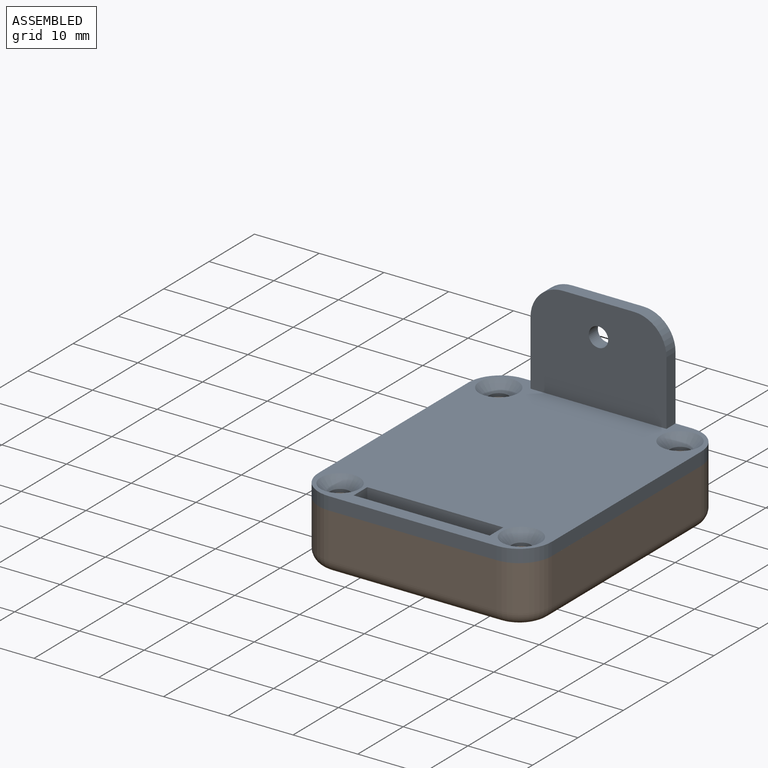
[diagram: assembled view]
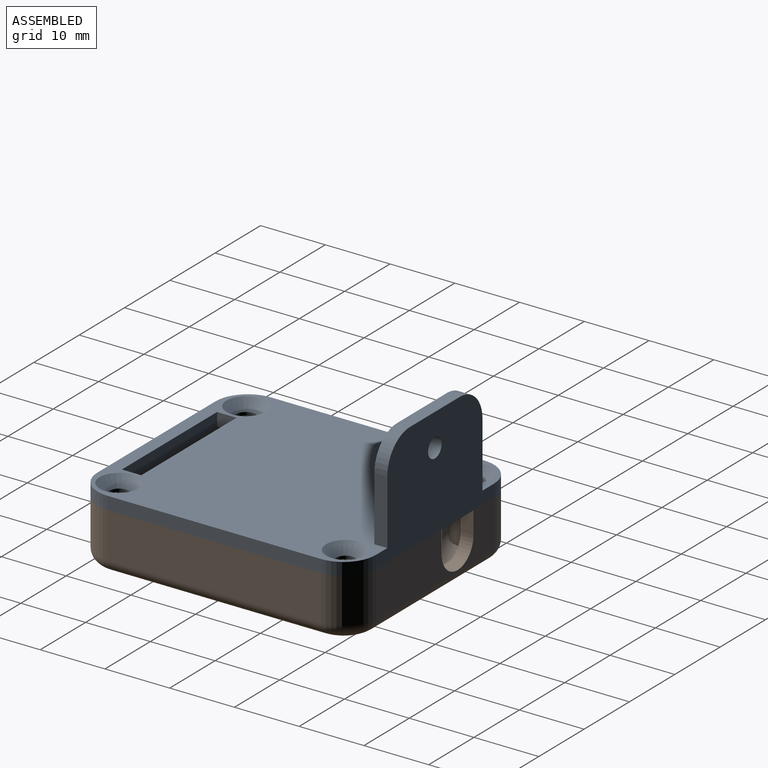
[diagram: assembled view, second angle]
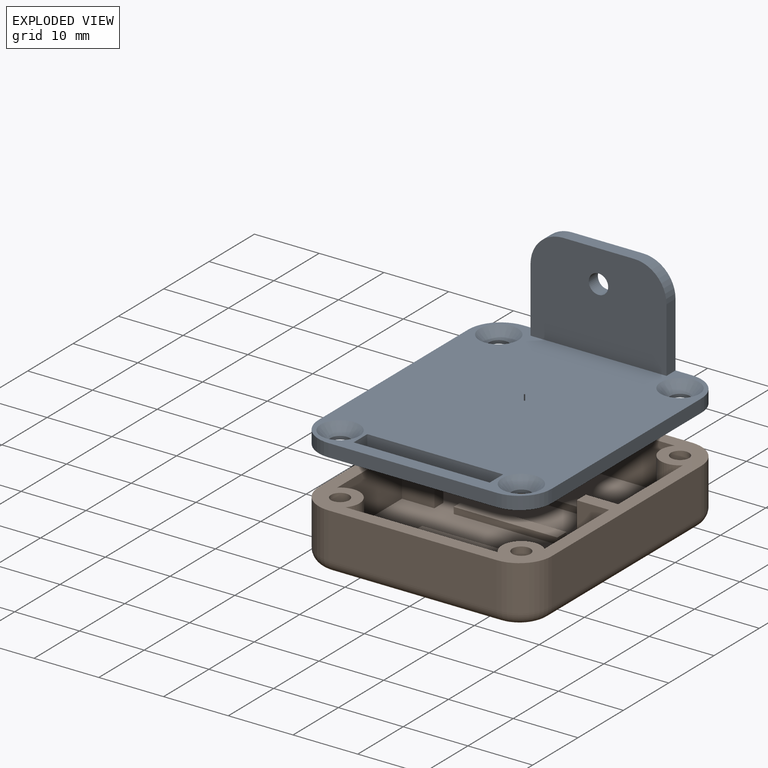
[diagram: exploded view]
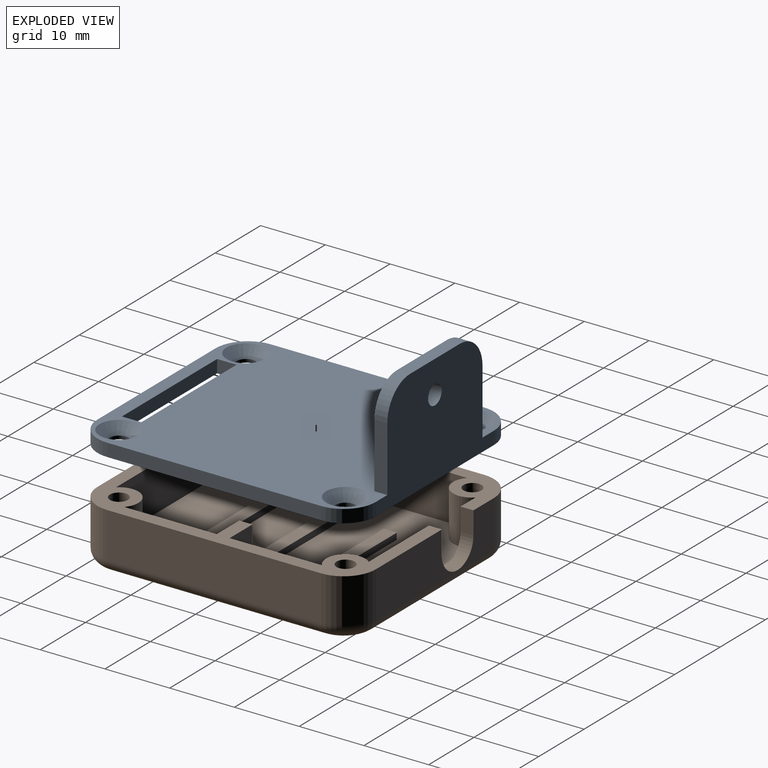
[diagram: exploded view, second angle]
ASSEMBLY  parts=2 mates=3
PART A: 29 faces, bbox 36x43x17 mm
  f0: plane 43x36mm, normal (0,0,1), area 1308.4mm2, adj f2,f3,f4,f5,f6,f7,f8,f9
  f1: plane 43x36mm, normal (0,0,-1), area 1435.3mm2, adj f2,f3,f4,f5,f6,f7,f8,f9
  f2: plane 33x2mm, normal (1,0,0), area 66mm2, adj f0,f1,f3,f9
  f3: cylinder r=5mm len=5mm, axis (0,0,-1), area 15.7mm2, adj f0,f1,f2,f4
  f4: plane 26x17mm, normal (0,1,0), area 349.2mm2, adj f0,f1,f3,f5,f22,f24,f25,f26
  f5: cylinder r=5mm len=5mm, axis (0,0,-1), area 15.7mm2, adj f0,f1,f4,f6
  f6: plane 33x2mm, normal (-1,0,0), area 66mm2, adj f0,f1,f5,f7
  f7: cylinder r=5mm len=5mm, axis (0,0,-1), area 15.7mm2, adj f0,f1,f6,f8
  f8: plane 26x2mm, normal (0,-1,0), area 52mm2, adj f0,f1,f7,f9
  f9: cylinder r=5mm len=5mm, axis (0,0,-1), area 15.7mm2, adj f0,f1,f2,f8
  f10: cylinder r=1.5mm len=3mm, axis (0,0,-1), area 4.7mm2, adj f1,f16
  f11: cylinder r=1.5mm len=3mm, axis (0,0,-1), area 4.7mm2, adj f1,f14
  f12: cylinder r=1.5mm len=3mm, axis (0,0,-1), area 4.7mm2, adj f1,f15
  f13: cylinder r=1.5mm len=3mm, axis (0,0,-1), area 4.7mm2, adj f1,f17
  f14: cone r=3mm half-angle=45deg, axis (0,0,1), area 30mm2, adj f0,f11
  f15: cone r=1.5mm half-angle=45deg, axis (0,0,1), area 30mm2, adj f0,f12
  f16: cone r=3mm half-angle=45deg, axis (0,0,1), area 30mm2, adj f0,f10
  f17: cone r=1.5mm half-angle=45deg, axis (0,0,1), area 30mm2, adj f0,f13
  f18: plane 21x2mm, normal (0,1,0), area 42mm2, adj f0,f1,f19,f20
  f19: plane 3x2mm, normal (1,0,0), area 6mm2, adj f0,f1,f18,f21
  f20: plane 3x2mm, normal (-1,0,0), area 6mm2, adj f0,f1,f18,f21
  f21: plane 21x2mm, normal (0,-1,0), area 42mm2, adj f0,f1,f19,f20
  f22: plane 10x2mm, normal (-1,0,0), area 20mm2, adj f0,f4,f23,f26
  f23: plane 21x15mm, normal (0,-1,0), area 297.2mm2, adj f0,f22,f24,f25,f26,f27,f28
  f24: plane 10x2mm, normal (1,0,0), area 20mm2, adj f0,f4,f23,f27
  f25: plane 11x2mm, normal (0,0,1), area 22mm2, adj f4,f23,f26,f27
  f26: cylinder r=5mm len=5mm, axis (0,1,0), area 15.7mm2, adj f4,f22,f23,f25
  f27: cylinder r=5mm len=5mm, axis (0,-1,0), area 15.7mm2, adj f4,f23,f24,f25
  f28: cylinder r=1.5mm len=3mm, axis (0,1,0), area 18.8mm2, adj f4,f23
PART B: 63 faces, bbox 36.8x43.8x9 mm
  f0: plane 18x7mm, normal (0,1,0), area 104.1mm2, adj f1,f17,f37,f38,f40
  f1: plane 43x36mm, normal (0,0,1), area 348.3mm2, adj f0,f2,f3,f4,f6,f7,f8,f9
  f2: plane 7x6.76mm, normal (0,-1,0), area 25.5mm2, adj f1,f5,f19,f38,f39
  f3: plane 8x7mm, normal (0,1,0), area 34.1mm2, adj f1,f11,f38,f39,f40
  f4: plane 14.26x7mm, normal (-1,0,0), area 99.8mm2, adj f1,f5,f28,f36
  f5: plane 39x32mm, normal (0,0,1), area 1043.6mm2, adj f2,f4,f6,f7,f8,f9,f10,f19
  f6: plane 14.26x7mm, normal (1,0,0), area 99.8mm2, adj f1,f5,f25,f32
  f7: plane 23.53x7mm, normal (0,1,0), area 164.7mm2, adj f1,f5,f25,f28
  f8: plane 14.26x7mm, normal (-1,0,0), area 99.8mm2, adj f1,f5,f22,f34
  f9: plane 16.76x7mm, normal (0,-1,0), area 95.5mm2, adj f1,f5,f22,f37,f38
  f10: plane 14.26x7mm, normal (1,0,0), area 99.8mm2, adj f1,f5,f19,f31
  f11: cylinder r=5mm len=7mm, axis (0,0,-1), area 55mm2, adj f1,f3,f12,f41
  f12: plane 33x7mm, normal (-1,0,0), area 231mm2, adj f1,f11,f13,f43
  f13: cylinder r=5mm len=7mm, axis (0,0,-1), area 55mm2, adj f1,f12,f14,f45
  f14: plane 26x7mm, normal (0,-1,0), area 182mm2, adj f1,f13,f15,f47
  f15: cylinder r=5mm len=7mm, axis (0,0,-1), area 55mm2, adj f1,f14,f16,f46
  f16: plane 33x7mm, normal (1,0,0), area 231mm2, adj f1,f15,f17,f44
  f17: cylinder r=5mm len=7mm, axis (0,0,-1), area 55mm2, adj f0,f1,f16,f42
  f18: plane 39x32mm, normal (0,0,-1), area 1240.3mm2, adj f40,f41,f42,f43,f44,f45,f46,f47
  f19: cylinder r=3mm len=7mm, axis (0,0,-1), area 63.6mm2, adj f1,f2,f5,f10
  f20: cylinder r=1.4mm len=7mm, axis (0,0,-1), area 61.6mm2, adj f1,f21
  f21: plane 2.8x2.8mm, normal (0,0,1), area 6.2mm2, adj f20
  f22: cylinder r=3mm len=7mm, axis (0,0,-1), area 63.6mm2, adj f1,f5,f8,f9
  f23: cylinder r=1.4mm len=7mm, axis (0,0,-1), area 61.6mm2, adj f1,f24
  f24: plane 2.8x2.8mm, normal (0,0,1), area 6.2mm2, adj f23
  f25: cylinder r=3mm len=7mm, axis (0,0,-1), area 63.6mm2, adj f1,f5,f6,f7
  f26: cylinder r=1.4mm len=7mm, axis (0,0,-1), area 61.6mm2, adj f1,f27
  f27: plane 2.8x2.8mm, normal (0,0,1), area 6.2mm2, adj f26
  f28: cylinder r=3mm len=7mm, axis (0,0,-1), area 63.6mm2, adj f1,f4,f5,f7
  f29: cylinder r=1.4mm len=7mm, axis (0,0,-1), area 61.6mm2, adj f1,f30
  f30: plane 2.8x2.8mm, normal (0,0,1), area 6.2mm2, adj f29
  f31: plane 7x5mm, normal (0,1,0), area 35mm2, adj f1,f5,f10,f33
  f32: plane 7x5mm, normal (0,-1,0), area 35mm2, adj f1,f5,f6,f33
  f33: plane 7x2mm, normal (1,0,0), area 14mm2, adj f1,f5,f31,f32
  f34: plane 7x5mm, normal (0,1,0), area 35mm2, adj f1,f5,f8,f35
  f35: plane 7x2mm, normal (-1,0,0), area 14mm2, adj f1,f5,f34,f36
  f36: plane 7x5mm, normal (0,-1,0), area 35mm2, adj f1,f4,f5,f35
  f37: plane 3.5x2mm, normal (-1,0,0), area 7mm2, adj f0,f1,f9,f38
  f38: cylinder r=3.5mm len=7mm, axis (0,1,0), area 22mm2, adj f0,f2,f3,f9,f37,f39
  f39: plane 3.5x2mm, normal (1,0,0), area 7mm2, adj f1,f2,f3,f38
  f40: cylinder r=2mm len=26mm, axis (-1,0,0), area 81.7mm2, adj f0,f3,f18,f41,f42
  f41: torus R=3mm, axis (0,0,1), area 21.1mm2, adj f11,f18,f40,f43
  f42: torus R=3mm, axis (0,0,1), area 21.1mm2, adj f17,f18,f40,f44
  f43: cylinder r=2mm len=33mm, axis (0,-1,0), area 103.7mm2, adj f12,f18,f41,f45
  f44: cylinder r=2mm len=33mm, axis (0,1,0), area 103.7mm2, adj f16,f18,f42,f46
  f45: torus R=3mm, axis (0,0,1), area 21.1mm2, adj f13,f18,f43,f47
  f46: torus R=3mm, axis (0,0,1), area 21.1mm2, adj f15,f18,f44,f47
  f47: cylinder r=2mm len=26mm, axis (1,0,0), area 81.7mm2, adj f14,f18,f45,f46
  f48: plane 16x1mm, normal (0,1,0), area 16mm2, adj f5,f49,f51,f52
  f49: plane 2x1mm, normal (-1,0,0), area 2mm2, adj f5,f48,f50,f52
  f50: plane 16x1mm, normal (0,-1,0), area 16mm2, adj f5,f49,f51,f52
  f51: plane 2x1mm, normal (1,0,0), area 2mm2, adj f5,f48,f50,f52
  f52: plane 16x2mm, normal (0,0,1), area 32mm2, adj f48,f49,f50,f51
  f53: plane 16x1mm, normal (0,1,0), area 16mm2, adj f5,f54,f56,f57
  f54: plane 2x1mm, normal (-1,0,0), area 2mm2, adj f5,f53,f55,f57
  f55: plane 16x1mm, normal (0,-1,0), area 16mm2, adj f5,f54,f56,f57
  f56: plane 2x1mm, normal (1,0,0), area 2mm2, adj f5,f53,f55,f57
  f57: plane 16x2mm, normal (0,0,1), area 32mm2, adj f53,f54,f55,f56
  f58: plane 16x1mm, normal (0,1,0), area 16mm2, adj f5,f59,f61,f62
  f59: plane 2x1mm, normal (-1,0,0), area 2mm2, adj f5,f58,f60,f62
  f60: plane 16x1mm, normal (0,-1,0), area 16mm2, adj f5,f59,f61,f62
  f61: plane 2x1mm, normal (1,0,0), area 2mm2, adj f5,f58,f60,f62
  f62: plane 16x2mm, normal (0,0,1), area 32mm2, adj f58,f59,f60,f61
PLACE A t=(-29.68,1.69,69.17)mm
PLACE B t=(-29.68,1.69,60.17)mm
MATE planar A.f6 <-> B.f12  axis (-1,0,0) through (-47.68,1.69,70.17)mm
MATE planar B.f1 <-> A.f1  axis (0,0,1) through (-29.47,0.86,69.17)mm
MATE planar A.f8 <-> B.f14  axis (0,-1,0) through (-29.68,-19.81,70.17)mm
